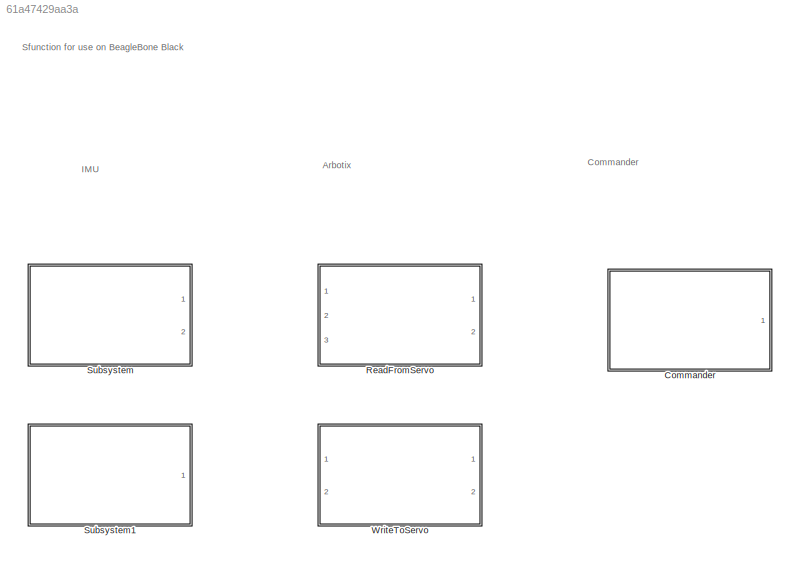
MODEL slx_61a47429aa3a
KIND library
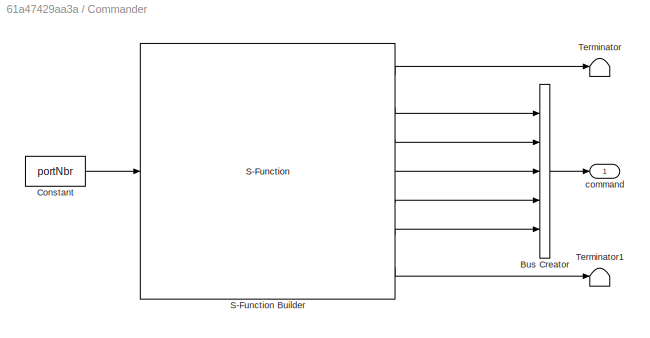
BLOCK [SubSystem] Commander
  Ports = [0, 1]
  RequestExecContextInheritance = off
BLOCK [BusCreator] Commander/Bus Creator
  DisplayOption = bar
  InheritFromInputs = off
  Inputs = 5
  OutDataTypeStr = Bus: Command
  Ports = [5, 1]
BLOCK [Constant] Commander/Constant
  AttributesFormatString = Sample time = %<SampleTime>
  OutDataTypeStr = int8
  SampleTime = 0.0125
  Value = portNbr
BLOCK [S-Function] Commander/S-Function Builder
  CopyFcn = set_param(gcbh,'LinkStatus','none')
  EnableBusSupport = off
  FunctionName = BBB_UART_XBEE
  InitFcn = try, set_param(gcb,'FunctionName','BBB_UART_XBEE'), end
  OpenFcn = sfunctionwizard(gcbh)
  Ports = [1, 7]
  PreSaveFcn = try, set_param(gcb,'FunctionName','BBB_UART_XBEE'), end
  SFunctionModules = BBB_UART_XBEE_wrapper
BLOCK [Terminator] Commander/Terminator
BLOCK [Terminator] Commander/Terminator1
BLOCK [Outport] Commander/command
  IconDisplay = Port number
  OutDataTypeStr = Bus: Command
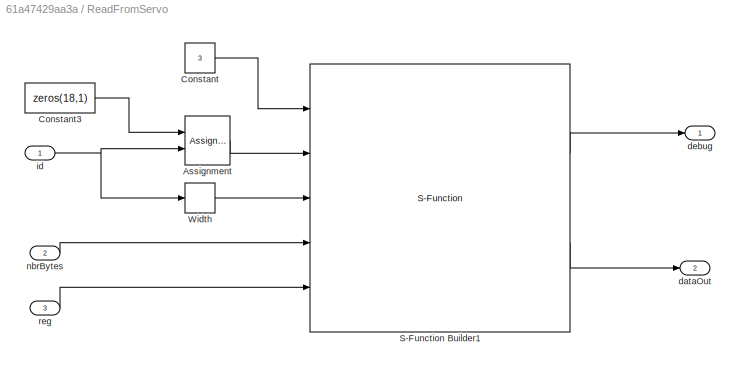
BLOCK [SubSystem] ReadFromServo
  Ports = [3, 2]
  RequestExecContextInheritance = off
BLOCK [Assignment] ReadFromServo/Assignment
  DiagnosticForDimensions = Warning
  IndexMode = Zero-based
  IndexOptions = Starting index (dialog)
  Indices = 0
  Ports = [2, 1]
BLOCK [Constant] ReadFromServo/Constant
  AttributesFormatString = Sample time = %<SampleTime>
  OutDataTypeStr = uint8
  SampleTime = -1
  Value = 3
BLOCK [Constant] ReadFromServo/Constant3
  AttributesFormatString = Sample time = %<SampleTime>
  OutDataTypeStr = uint8
  SampleTime = -1
  Value = zeros(18,1)
BLOCK [S-Function] ReadFromServo/S-Function Builder1
  CopyFcn = set_param(gcbh,'LinkStatus','none')
  EnableBusSupport = off
  FunctionName = BBB_ARBOTIX_READ_SERVO
  InitFcn = try, set_param(gcb,'FunctionName','BBB_ARBOTIX_READ_SERVO'), end
  OpenFcn = sfunctionwizard(gcbh)
  Ports = [5, 2]
  PreSaveFcn = try, set_param(gcb,'FunctionName','BBB_ARBOTIX_READ_SERVO'), end
  SFunctionModules = BBB_ARBOTIX_READ_SERVO_wrapper
BLOCK [Width] ReadFromServo/Width
  DataType = uint8
BLOCK [Outport] ReadFromServo/dataOut
  IconDisplay = Port number
  Port = 2
BLOCK [Outport] ReadFromServo/debug
  IconDisplay = Port number
BLOCK [Inport] ReadFromServo/id
  IconDisplay = Port number
BLOCK [Inport] ReadFromServo/nbrBytes
  IconDisplay = Port number
  Port = 2
BLOCK [Inport] ReadFromServo/reg
  IconDisplay = Port number
  Port = 3
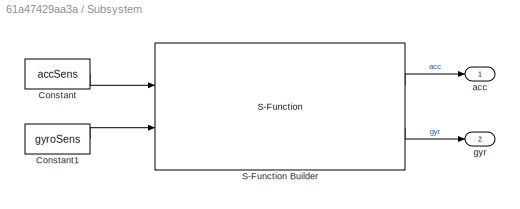
BLOCK [SubSystem] Subsystem
  Ports = [0, 2]
  RequestExecContextInheritance = off
BLOCK [Constant] Subsystem/Constant
  AttributesFormatString = Sample time = %<SampleTime>
  OutDataTypeStr = int8
  SampleTime = 0.01
  Value = accSens
BLOCK [Constant] Subsystem/Constant1
  AttributesFormatString = Sample time = %<SampleTime>
  OutDataTypeStr = int8
  SampleTime = 0.01
  Value = gyroSens
BLOCK [S-Function] Subsystem/S-Function Builder
  CopyFcn = set_param(gcbh,'LinkStatus','none')
  EnableBusSupport = off
  FunctionName = BBB_MPU9150
  InitFcn = try, set_param(gcb,'FunctionName','BBB_MPU9150'), end
  OpenFcn = sfunctionwizard(gcbh)
  Ports = [2, 2]
  PreSaveFcn = try, set_param(gcb,'FunctionName','BBB_MPU9150'), end
  SFunctionModules = BBB_MPU9150_wrapper
BLOCK [Outport] Subsystem/acc
  IconDisplay = Port number
BLOCK [Outport] Subsystem/gyr
  IconDisplay = Port number
  Port = 2
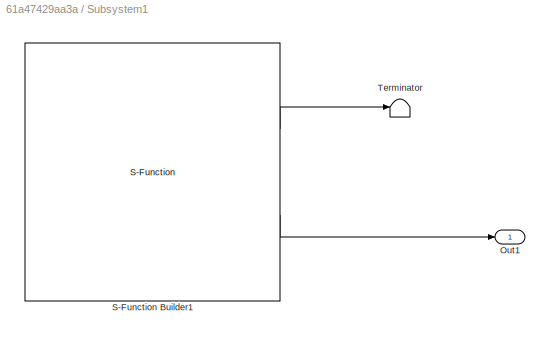
BLOCK [SubSystem] Subsystem1
  Ports = [0, 1]
  RequestExecContextInheritance = off
BLOCK [Outport] Subsystem1/Out1
  IconDisplay = Port number
BLOCK [S-Function] Subsystem1/S-Function Builder1
  CopyFcn = set_param(gcbh,'LinkStatus','none')
  EnableBusSupport = off
  FunctionName = BBB_IMU_DMP
  InitFcn = try, set_param(gcb,'FunctionName','BBB_IMU_DMP'), end
  OpenFcn = sfunctionwizard(gcbh)
  Parameters = int16([-17524,17966,-17130,17078,-18186,18790]),int16([-250,134,-161,289,-145,236])
  Ports = [0, 2]
  PreSaveFcn = try, set_param(gcb,'FunctionName','BBB_IMU_DMP'), end
  SFunctionModules = BBB_IMU_DMP_wrapper
BLOCK [Terminator] Subsystem1/Terminator
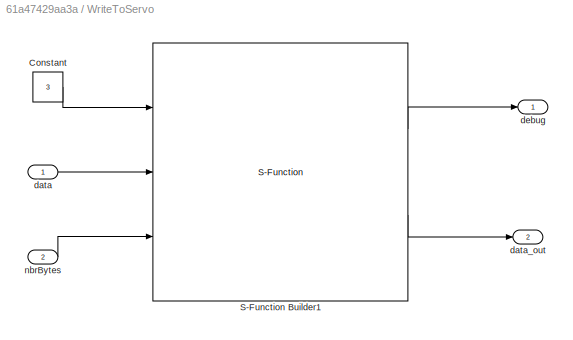
BLOCK [SubSystem] WriteToServo
  Ports = [2, 2]
  RequestExecContextInheritance = off
BLOCK [Constant] WriteToServo/Constant
  AttributesFormatString = Sample time = %<SampleTime>
  OutDataTypeStr = uint8
  SampleTime = -1
  Value = 3
BLOCK [S-Function] WriteToServo/S-Function Builder1
  CopyFcn = set_param(gcbh,'LinkStatus','none')
  EnableBusSupport = off
  FunctionName = BBB_UART_ARBOTIX
  InitFcn = try, set_param(gcb,'FunctionName','BBB_UART_ARBOTIX'), end
  OpenFcn = sfunctionwizard(gcbh)
  Ports = [3, 2]
  PreSaveFcn = try, set_param(gcb,'FunctionName','BBB_UART_ARBOTIX'), end
  SFunctionModules = BBB_UART_ARBOTIX_wrapper
BLOCK [Inport] WriteToServo/data
  IconDisplay = Port number
BLOCK [Outport] WriteToServo/data_out
  IconDisplay = Port number
  Port = 2
BLOCK [Outport] WriteToServo/debug
  IconDisplay = Port number
BLOCK [Inport] WriteToServo/nbrBytes
  IconDisplay = Port number
  Port = 2
ANNOTATION (root): Commander
ANNOTATION (root): Sfunction for use on BeagleBone Black
ANNOTATION (root): Arbotix
ANNOTATION (root): IMU
LINE Commander/Bus Creator:1 -> Commander/command:1
LINE Commander/Constant:1 -> Commander/S-Function Builder:1
LINE Commander/S-Function Builder:1 -> Commander/Terminator:1
LINE Commander/S-Function Builder:2 -> Commander/Bus Creator:1
LINE Commander/S-Function Builder:3 -> Commander/Bus Creator:2
LINE Commander/S-Function Builder:4 -> Commander/Bus Creator:3
LINE Commander/S-Function Builder:5 -> Commander/Bus Creator:4
LINE Commander/S-Function Builder:6 -> Commander/Bus Creator:5
LINE Commander/S-Function Builder:7 -> Commander/Terminator1:1
LINE ReadFromServo/Assignment:1 -> ReadFromServo/S-Function Builder1:2
LINE ReadFromServo/Constant3:1 -> ReadFromServo/Assignment:1
LINE ReadFromServo/Constant:1 -> ReadFromServo/S-Function Builder1:1
LINE ReadFromServo/S-Function Builder1:1 -> ReadFromServo/debug:1
LINE ReadFromServo/S-Function Builder1:2 -> ReadFromServo/dataOut:1
LINE ReadFromServo/Width:1 -> ReadFromServo/S-Function Builder1:3
NET ReadFromServo/id:1 -> ReadFromServo/Assignment:2, ReadFromServo/Width:1
LINE ReadFromServo/nbrBytes:1 -> ReadFromServo/S-Function Builder1:4
LINE ReadFromServo/reg:1 -> ReadFromServo/S-Function Builder1:5
LINE Subsystem/Constant1:1 -> Subsystem/S-Function Builder:2
LINE Subsystem/Constant:1 -> Subsystem/S-Function Builder:1
LINE Subsystem/S-Function Builder:1 -> Subsystem/acc:1
LINE Subsystem/S-Function Builder:2 -> Subsystem/gyr:1
LINE Subsystem1/S-Function Builder1:1 -> Subsystem1/Terminator:1
LINE Subsystem1/S-Function Builder1:2 -> Subsystem1/Out1:1
LINE WriteToServo/Constant:1 -> WriteToServo/S-Function Builder1:1
LINE WriteToServo/S-Function Builder1:1 -> WriteToServo/debug:1
LINE WriteToServo/S-Function Builder1:2 -> WriteToServo/data_out:1
LINE WriteToServo/data:1 -> WriteToServo/S-Function Builder1:2
LINE WriteToServo/nbrBytes:1 -> WriteToServo/S-Function Builder1:3
note: NET lines group one-source signal fan-out (src -> all destinations, sorted); 1:1 wires keep LINE
